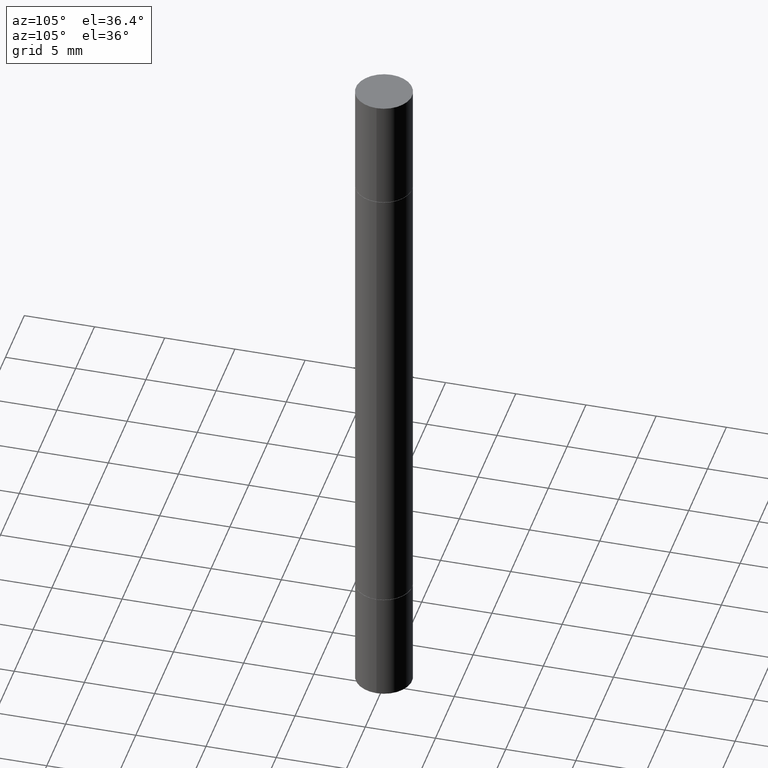
[diagram: clean part render]
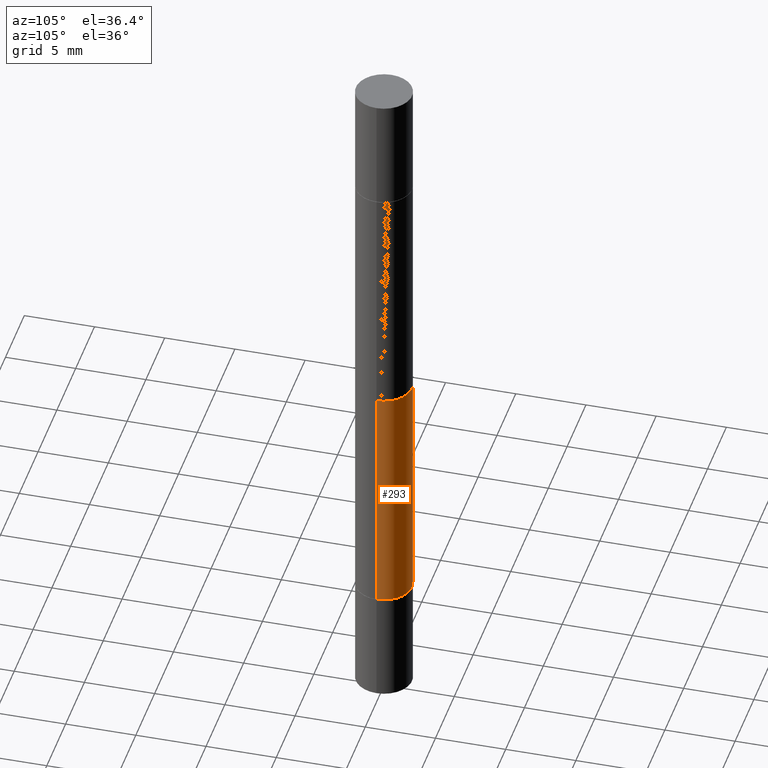
[diagram: same view with one face highlighted and labeled with its STEP entity id]
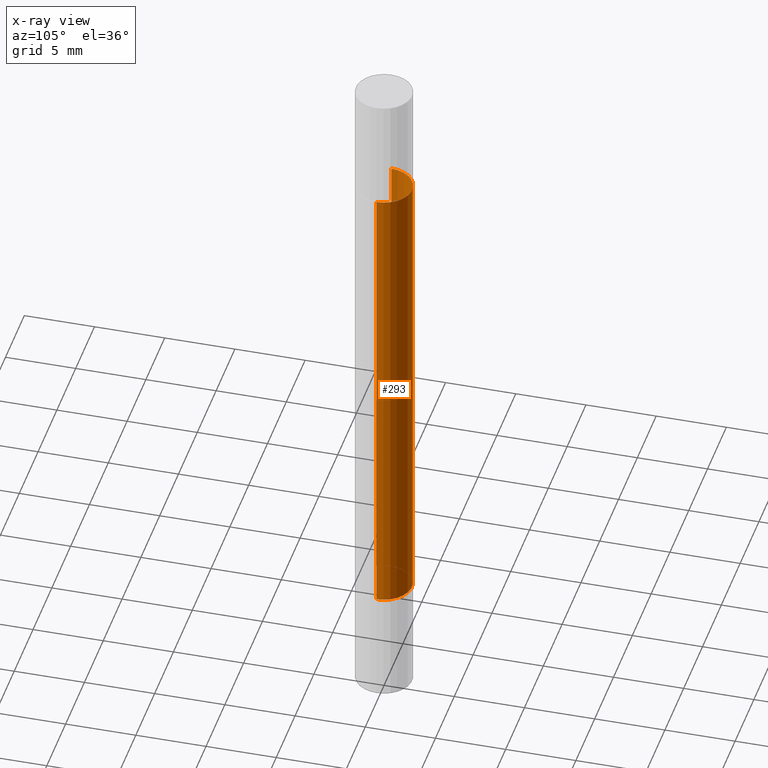
[diagram: x-ray of the same camera — body ghosted, the highlighted face saturated]
A machine part, auxiliary view. The second image highlights one B-rep face of the part: STEP entity #293.
The next image is the same camera in x-ray: the body ghosted, the highlighted face saturated — about 0% of this face is hidden behind the body in this view.
In plain terms, the highlighted cylindrical surface (edge-blend (fillet) strip) has radius 2.0002 mm, axis along (-0, -0, -1).
Its self-contained STEP definition (entity closure, byte-faithful):
#3 = VERTEX_POINT ( 'NONE', #266 ) ;
#11 = AXIS2_PLACEMENT_3D ( 'NONE', #612, #299, #146 ) ;
#38 = EDGE_CURVE ( 'NONE', #453, #258, #531, .T. ) ;
#40 = LINE ( 'NONE', #333, #235 ) ;
#47 = DIRECTION ( 'NONE',  ( -2.445468806185136877E-29, -3.492890411551753071E-15, -1.000000000000000000 ) ) ;
#65 = ORIENTED_EDGE ( 'NONE', *, *, #572, .T. ) ;
#67 = CARTESIAN_POINT ( 'NONE',  ( 4.041137202220937598E-29, -1.102366490236907793E-15, -0.3159999999999998366 ) ) ;
#87 = CARTESIAN_POINT ( 'NONE',  ( 0.07874999999999997280, -6.319581223306091410E-15, -1.652499999999999858 ) ) ;
#137 = CARTESIAN_POINT ( 'NONE',  ( -0.07874999999999997280, -5.621022729123983254E-16, -0.3159999999999998366 ) ) ;
#146 = DIRECTION ( 'NONE',  ( 1.000000000000000000, -6.982962677686264344E-15, 0.000000000000000000 ) ) ;
#228 = DIRECTION ( 'NONE',  ( -2.445468806185136597E-29, -3.492890411551752677E-15, -1.000000000000000000 ) ) ;
#235 = VECTOR ( 'NONE', #498, 39.37007874015748143 ) ;
#258 = VERTEX_POINT ( 'NONE', #137 ) ;
#259 = ORIENTED_EDGE ( 'NONE', *, *, #38, .F. ) ;
#266 = CARTESIAN_POINT ( 'NONE',  ( -0.07874999999999997280, -2.896226290431854020E-15, -1.652499999999999858 ) ) ;
#271 = DIRECTION ( 'NONE',  ( 2.445468806185136597E-29, 3.492890411551752677E-15, 1.000000000000000000 ) ) ;
#276 = CYLINDRICAL_SURFACE ( 'NONE', #399, 0.07874999999999987566 ) ;
#293 = ADVANCED_FACE ( 'NONE', ( #654 ), #276, .T. ) ;
#299 = DIRECTION ( 'NONE',  ( -2.445468806185136597E-29, 3.491481338843145583E-15, 1.000000000000000000 ) ) ;
#333 = CARTESIAN_POINT ( 'NONE',  ( -0.07874999999999987566, -6.334103678001671209E-15, -1.968499999999999694 ) ) ;
#351 = EDGE_CURVE ( 'NONE', #453, #394, #460, .T. ) ;
#394 = VERTEX_POINT ( 'NONE', #87 ) ;
#399 = AXIS2_PLACEMENT_3D ( 'NONE', #541, #228, #642 ) ;
#404 = CARTESIAN_POINT ( 'NONE',  ( 0.07874999999999987566, -7.424276206193971655E-15, -1.968499999999999694 ) ) ;
#449 = EDGE_CURVE ( 'NONE', #258, #3, #40, .T. ) ;
#450 = VECTOR ( 'NONE', #47, 39.37007874015748143 ) ;
#453 = VERTEX_POINT ( 'NONE', #606 ) ;
#460 = LINE ( 'NONE', #404, #450 ) ;
#462 = EDGE_LOOP ( 'NONE', ( #522, #259, #476, #65 ) ) ;
#476 = ORIENTED_EDGE ( 'NONE', *, *, #351, .T. ) ;
#483 = DIRECTION ( 'NONE',  ( 1.000000000000000000, -6.982962677686267499E-15, 0.000000000000000000 ) ) ;
#498 = DIRECTION ( 'NONE',  ( -2.445468806185136877E-29, -3.492890411551753071E-15, -1.000000000000000000 ) ) ;
#520 = CIRCLE ( 'NONE', #11, 0.07874999999999997280 ) ;
#522 = ORIENTED_EDGE ( 'NONE', *, *, #449, .F. ) ;
#531 = CIRCLE ( 'NONE', #554, 0.07874999999999997280 ) ;
#541 = CARTESIAN_POINT ( 'NONE',  ( 0.000000000000000000, -6.874367895326177521E-15, -1.968499999999999694 ) ) ;
#554 = AXIS2_PLACEMENT_3D ( 'NONE', #67, #271, #483 ) ;
#572 = EDGE_CURVE ( 'NONE', #394, #3, #520, .T. ) ;
#606 = CARTESIAN_POINT ( 'NONE',  ( 0.07874999999999997280, -1.652274801104699758E-15, -0.3159999999999998366 ) ) ;
#612 = CARTESIAN_POINT ( 'NONE',  ( 4.041137202220937598E-29, -5.769672912438298064E-15, -1.652499999999999858 ) ) ;
#642 = DIRECTION ( 'NONE',  ( 1.000000000000000000, -6.982962677686273021E-15, 0.000000000000000000 ) ) ;
#654 = FACE_OUTER_BOUND ( 'NONE', #462, .T. ) ;